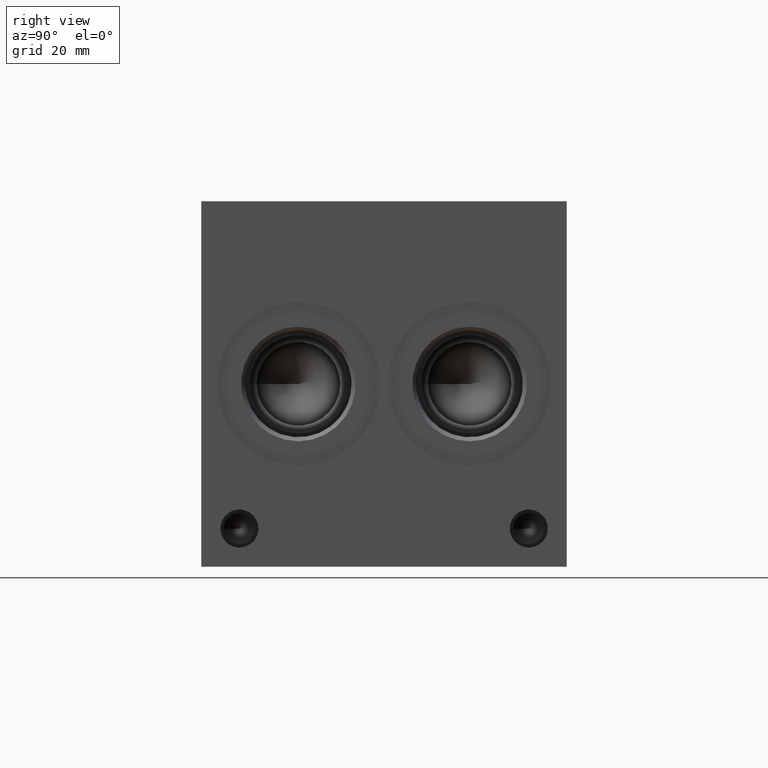
[diagram: clean part render]
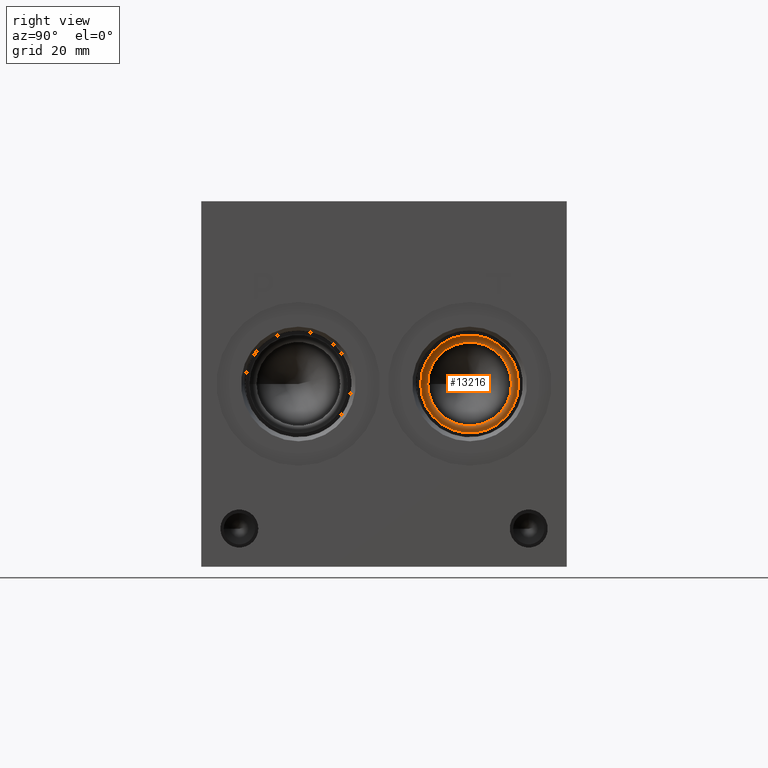
[diagram: same view with one face highlighted and labeled with its STEP entity id]
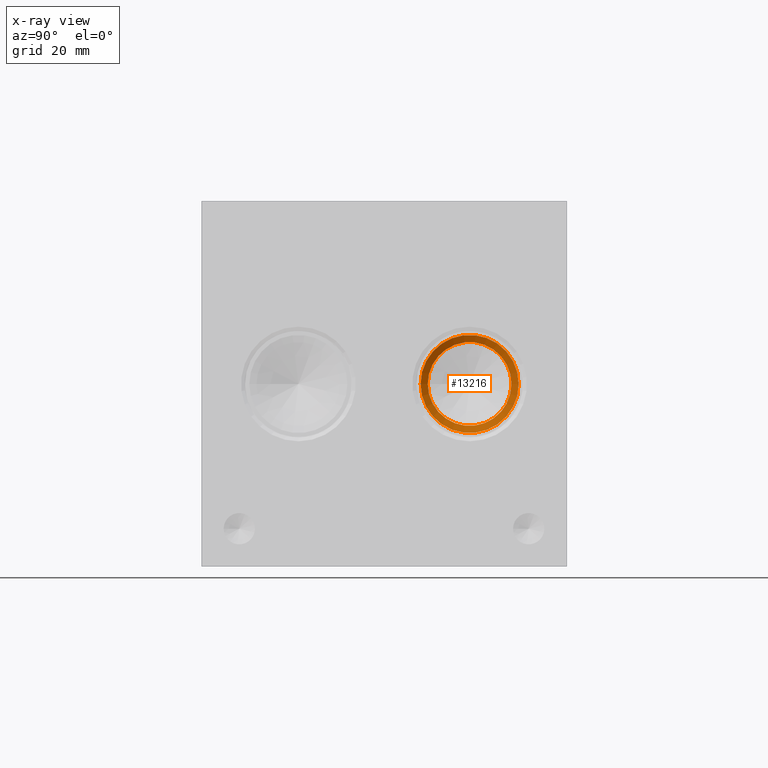
[diagram: x-ray of the same camera — body ghosted, the highlighted face saturated]
A machine part, right view. The second image highlights one B-rep face of the part: STEP entity #13216.
The next image is the same camera in x-ray: the body ghosted, the highlighted face saturated — about 0% of this face is hidden behind the body in this view.
In plain terms, the highlighted conical surface has half-angle 66 deg.
Its self-contained STEP definition (entity closure, byte-faithful):
#24=CONICAL_SURFACE('',#13816,5.11175,1.15191730631626);
#229=CIRCLE('',#13804,8.7376);
#237=CIRCLE('',#13817,10.2235);
#238=CIRCLE('',#13818,10.2235);
#1664=FACE_OUTER_BOUND('',#2418,.T.);
#2418=EDGE_LOOP('',(#11025,#11026,#11027,#11028,#11029));
#3674=LINE('',#22423,#4850);
#4850=VECTOR('',#16134,5.11175);
#5970=VERTEX_POINT('',#22395);
#5978=VERTEX_POINT('',#22420);
#5979=VERTEX_POINT('',#22421);
#7728=EDGE_CURVE('',#5970,#5970,#229,.T.);
#7740=EDGE_CURVE('',#5978,#5979,#237,.T.);
#7741=EDGE_CURVE('',#5979,#5970,#3674,.T.);
#7742=EDGE_CURVE('',#5979,#5978,#238,.T.);
#11025=ORIENTED_EDGE('',*,*,#7740,.T.);
#11026=ORIENTED_EDGE('',*,*,#7741,.T.);
#11027=ORIENTED_EDGE('',*,*,#7728,.T.);
#11028=ORIENTED_EDGE('',*,*,#7741,.F.);
#11029=ORIENTED_EDGE('',*,*,#7742,.T.);
#13216=ADVANCED_FACE('',(#1664),#24,.F.);
#13804=AXIS2_PLACEMENT_3D('',#22396,#16102,#16103);
#13816=AXIS2_PLACEMENT_3D('',#22419,#16130,#16131);
#13817=AXIS2_PLACEMENT_3D('',#22422,#16132,#16133);
#13818=AXIS2_PLACEMENT_3D('',#22424,#16135,#16136);
#16102=DIRECTION('center_axis',(-1.,0.,0.));
#16103=DIRECTION('ref_axis',(0.,1.,0.));
#16130=DIRECTION('center_axis',(1.,0.,0.));
#16131=DIRECTION('ref_axis',(0.,1.,0.));
#16132=DIRECTION('center_axis',(1.,0.,0.));
#16133=DIRECTION('ref_axis',(0.,1.,0.));
#16134=DIRECTION('',(-0.4067366430758,0.913545457642601,1.11877052057761E-16));
#16135=DIRECTION('center_axis',(1.,0.,0.));
#16136=DIRECTION('ref_axis',(0.,1.,0.));
#22395=CARTESIAN_POINT('',(86.5112346965001,47.2186,38.1));
#22396=CARTESIAN_POINT('Origin',(86.5112346965001,55.9562,38.1));
#22419=CARTESIAN_POINT('Origin',(84.8969022678741,55.9562,38.1));
#22420=CARTESIAN_POINT('',(87.1728,66.1797,38.1));
#22421=CARTESIAN_POINT('',(87.1728,45.7327,38.1));
#22422=CARTESIAN_POINT('Origin',(87.1728,55.9562,38.1));
#22423=CARTESIAN_POINT('',(84.8969022678741,50.84445,38.1));
#22424=CARTESIAN_POINT('Origin',(87.1728,55.9562,38.1));